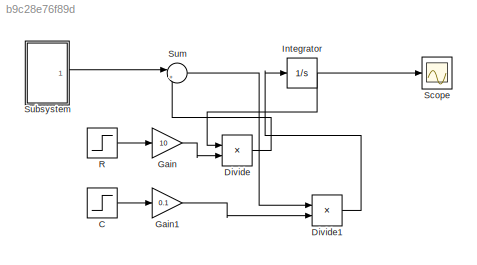
MODEL slx_b9c28e76f89d
KIND model
CONFIG AbsTol = auto
CONFIG EnableMultiTasking = off
CONFIG FixedStep = auto
CONFIG MaxStep = auto
CONFIG MinStep = auto
CONFIG RelTol = 1e-3
CONFIG SampleTimeConstraint = Unconstrained
CONFIG SolverName = VariableStepAuto
CONFIG StartTime = 0.0
CONFIG StopTime = 10.0
BLOCK [Step] C
  SampleTime = 0
  Time = 0
BLOCK [Product] Divide
  Inputs = */
  Ports = [2, 1]
BLOCK [Product] Divide1
  Inputs = */
  Ports = [2, 1]
BLOCK [Gain] Gain
  Gain = 10
BLOCK [Gain] Gain1
  Gain = 0.1
BLOCK [Integrator] Integrator
  Ports = [1, 1]
BLOCK [Step] R
  SampleTime = 0
  Time = 0
BLOCK [Scope] Scope
  Floating = off
  NumInputPorts = 1
  Ports = [1]
  ScopeSpecificationString = Simulink.scopes.TimeScopeBlockCfg('CurrentConfiguration', extmgr.ConfigurationSet(extmgr.Configuration('Core','General UI',true),extmgr.Configuration('Core','Source UI',true),extmgr.Configuration('Sources','WiredSimulink',true),extmgr.Configuration('Visuals','Time Domain',true,'SerializedDisplays',{struct('MinYLimReal','-1.22711','MaxYLimReal','11.04395','YLabelReal','','MinYLimMag','0.00000','Max...<+1494ch>
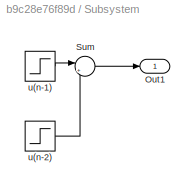
BLOCK [SubSystem] Subsystem
  Ports = [0, 1]
  RequestExecContextInheritance = off
BLOCK [Outport] Subsystem/Out1
BLOCK [Sum] Subsystem/Sum
  Inputs = |+-
  Ports = [2, 1]
BLOCK [Step] Subsystem/u(n-1)
  SampleTime = 0
BLOCK [Step] Subsystem/u(n-2)
  SampleTime = 0
  Time = 5
BLOCK [Sum] Sum
  Inputs = |+-
  Ports = [2, 1]
LINE C:1 -> Gain1:1
LINE Divide1:1 -> Integrator:1
LINE Divide:1 -> Sum:2
LINE Gain1:1 -> Divide1:2
LINE Gain:1 -> Divide:2
NET Integrator:1 -> Divide:1, Scope:1
LINE R:1 -> Gain:1
LINE Subsystem/Sum:1 -> Subsystem/Out1:1
LINE Subsystem/u(n-1):1 -> Subsystem/Sum:1
LINE Subsystem/u(n-2):1 -> Subsystem/Sum:2
LINE Subsystem:1 -> Sum:1
LINE Sum:1 -> Divide1:1
note: NET lines group one-source signal fan-out (src -> all destinations, sorted); 1:1 wires keep LINE
